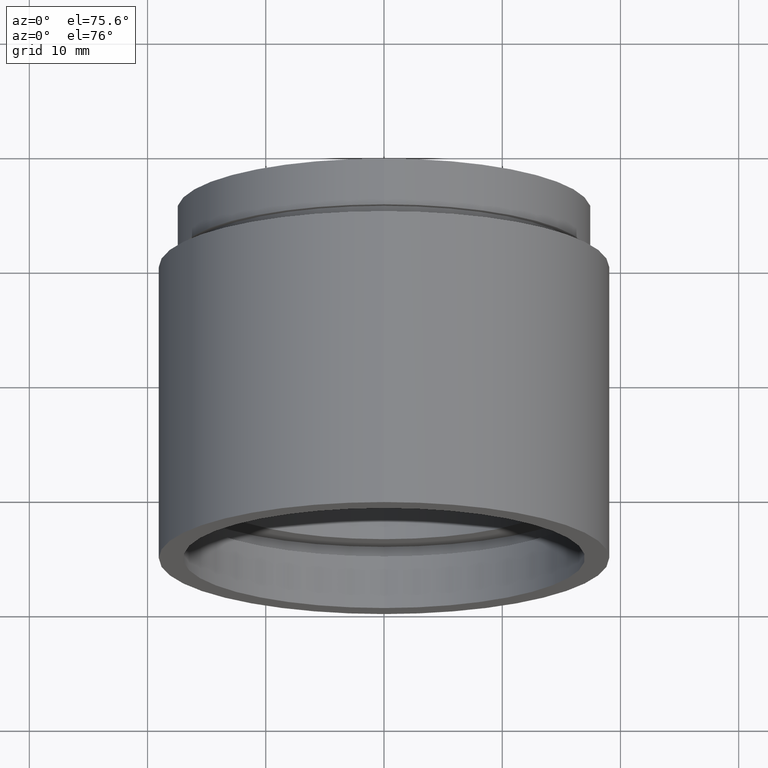
[diagram: clean part render]
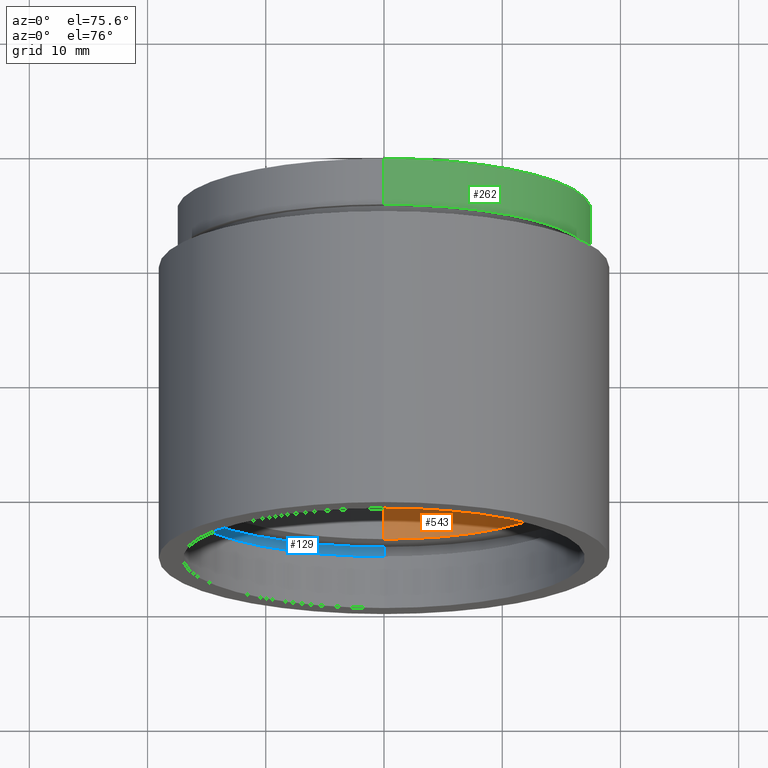
[diagram: same view with three faces highlighted in distinct colors, each labeled with its STEP entity id]
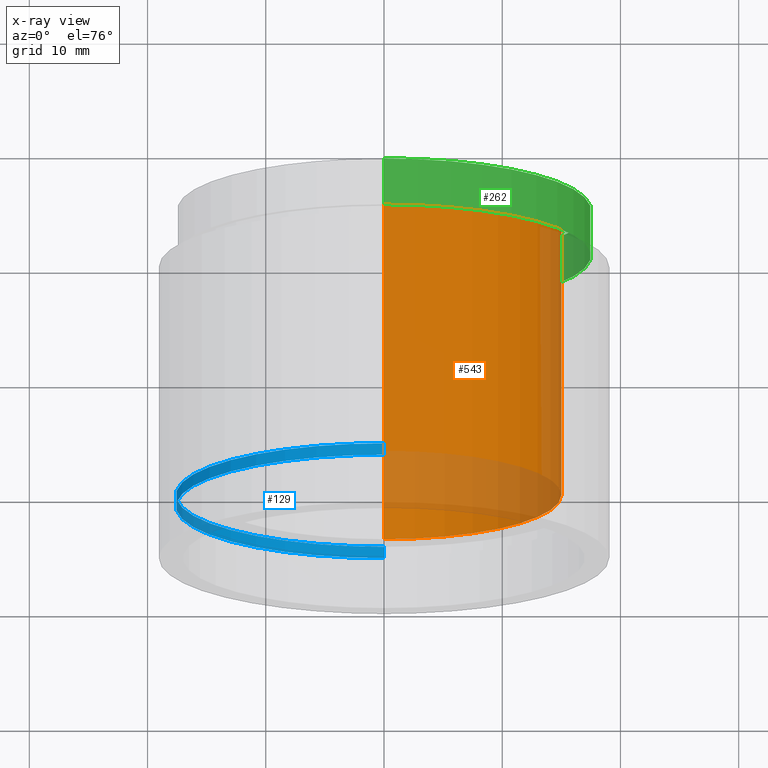
[diagram: x-ray of the same camera — body ghosted, the three highlighted faces saturated]
A machine part, auxiliary view with three faces highlighted in distinct colors.
The next image is the same camera in x-ray (body ghosted, the three faces saturated) — at least one of them is partly hidden behind the body in this view.
Their STEP definitions:

[orange] entity #543 — the highlighted cylindrical surface (partial cylindrical patch) has radius 15 mm, axis along (-0, 1, -0).
#3 = VECTOR ( 'NONE', #280, 1000.000000000000000 ) ;
#50 = DIRECTION ( 'NONE',  ( -0.0000000000000000000, 1.000000000000000000, -0.0000000000000000000 ) ) ;
#78 = CARTESIAN_POINT ( 'NONE',  ( 0.0000000000000000000, 161.3761669434274500, 0.0000000000000000000 ) ) ;
#79 = DIRECTION ( 'NONE',  ( -0.0000000000000000000, 1.000000000000000000, -0.0000000000000000000 ) ) ;
#82 = AXIS2_PLACEMENT_3D ( 'NONE', #196, #50, #353 ) ;
#87 = LINE ( 'NONE', #572, #3 ) ;
#121 = ORIENTED_EDGE ( 'NONE', *, *, #281, .F. ) ;
#175 = VECTOR ( 'NONE', #530, 1000.000000000000000 ) ;
#187 = EDGE_LOOP ( 'NONE', ( #121, #370, #299, #240 ) ) ;
#191 = VERTEX_POINT ( 'NONE', #334 ) ;
#193 = CYLINDRICAL_SURFACE ( 'NONE', #213, 15.00000000000001600 ) ;
#196 = CARTESIAN_POINT ( 'NONE',  ( 0.0000000000000000000, 30.39999999999998400, 0.0000000000000000000 ) ) ;
#197 = CARTESIAN_POINT ( 'NONE',  ( 0.0000000000000000000, 161.3761669434274500, 15.00000000000001600 ) ) ;
#201 = EDGE_CURVE ( 'NONE', #191, #620, #551, .T. ) ;
#213 = AXIS2_PLACEMENT_3D ( 'NONE', #78, #222, #275 ) ;
#216 = VERTEX_POINT ( 'NONE', #380 ) ;
#222 = DIRECTION ( 'NONE',  ( -0.0000000000000000000, 1.000000000000000000, -0.0000000000000000000 ) ) ;
#229 = FACE_OUTER_BOUND ( 'NONE', #187, .T. ) ;
#240 = ORIENTED_EDGE ( 'NONE', *, *, #308, .T. ) ;
#267 = DIRECTION ( 'NONE',  ( 0.0000000000000000000, 0.0000000000000000000, 1.000000000000000000 ) ) ;
#275 = DIRECTION ( 'NONE',  ( 0.0000000000000000000, 0.0000000000000000000, 1.000000000000000000 ) ) ;
#280 = DIRECTION ( 'NONE',  ( -0.0000000000000000000, 1.000000000000000000, -0.0000000000000000000 ) ) ;
#281 = EDGE_CURVE ( 'NONE', #620, #575, #87, .T. ) ;
#299 = ORIENTED_EDGE ( 'NONE', *, *, #343, .T. ) ;
#308 = EDGE_CURVE ( 'NONE', #216, #575, #573, .T. ) ;
#334 = CARTESIAN_POINT ( 'NONE',  ( 0.0000000000000000000, 5.499999999999976900, 15.00000000000001600 ) ) ;
#343 = EDGE_CURVE ( 'NONE', #191, #216, #437, .T. ) ;
#353 = DIRECTION ( 'NONE',  ( 0.0000000000000000000, 0.0000000000000000000, 1.000000000000000000 ) ) ;
#370 = ORIENTED_EDGE ( 'NONE', *, *, #201, .F. ) ;
#380 = CARTESIAN_POINT ( 'NONE',  ( 0.0000000000000000000, 30.39999999999998400, 15.00000000000001800 ) ) ;
#419 = CARTESIAN_POINT ( 'NONE',  ( 1.836970198721032000E-015, 5.499999999999976900, -15.00000000000001600 ) ) ;
#437 = LINE ( 'NONE', #197, #175 ) ;
#530 = DIRECTION ( 'NONE',  ( -0.0000000000000000000, 1.000000000000000000, -0.0000000000000000000 ) ) ;
#543 = ADVANCED_FACE ( 'NONE', ( #229 ), #193, .F. ) ;
#551 = CIRCLE ( 'NONE', #564, 15.00000000000001600 ) ;
#564 = AXIS2_PLACEMENT_3D ( 'NONE', #611, #79, #267 ) ;
#572 = CARTESIAN_POINT ( 'NONE',  ( 1.836970198721032000E-015, 161.3761669434274500, -15.00000000000001600 ) ) ;
#573 = CIRCLE ( 'NONE', #82, 15.00000000000001800 ) ;
#575 = VERTEX_POINT ( 'NONE', #609 ) ;
#609 = CARTESIAN_POINT ( 'NONE',  ( 1.836970198721032300E-015, 30.39999999999998400, -15.00000000000002000 ) ) ;
#611 = CARTESIAN_POINT ( 'NONE',  ( 0.0000000000000000000, 5.499999999999976900, 0.0000000000000000000 ) ) ;
#620 = VERTEX_POINT ( 'NONE', #419 ) ;

[blue] entity #129 — the highlighted cylindrical surface (partial cylindrical patch) has radius 17.6 mm, axis along (-0, 1, -0).
#10 = EDGE_LOOP ( 'NONE', ( #527, #57, #158, #417 ) ) ;
#14 = EDGE_CURVE ( 'NONE', #580, #85, #590, .T. ) ;
#15 = CARTESIAN_POINT ( 'NONE',  ( 2.155378366499344400E-015, 5.499999999999976900, -17.60000000000002300 ) ) ;
#57 = ORIENTED_EDGE ( 'NONE', *, *, #14, .T. ) ;
#64 = VECTOR ( 'NONE', #146, 1000.000000000000000 ) ;
#73 = VECTOR ( 'NONE', #489, 1000.000000000000000 ) ;
#76 = EDGE_CURVE ( 'NONE', #85, #589, #493, .T. ) ;
#85 = VERTEX_POINT ( 'NONE', #15 ) ;
#106 = CARTESIAN_POINT ( 'NONE',  ( 0.0000000000000000000, 4.499999999999976000, 0.0000000000000000000 ) ) ;
#129 = ADVANCED_FACE ( 'NONE', ( #502 ), #444, .F. ) ;
#146 = DIRECTION ( 'NONE',  ( -0.0000000000000000000, 1.000000000000000000, -0.0000000000000000000 ) ) ;
#158 = ORIENTED_EDGE ( 'NONE', *, *, #76, .T. ) ;
#179 = CARTESIAN_POINT ( 'NONE',  ( 0.0000000000000000000, 5.499999999999976900, 17.60000000000002300 ) ) ;
#203 = DIRECTION ( 'NONE',  ( 0.0000000000000000000, 0.0000000000000000000, 1.000000000000000000 ) ) ;
#215 = DIRECTION ( 'NONE',  ( 0.0000000000000000000, 0.0000000000000000000, 1.000000000000000000 ) ) ;
#277 = CARTESIAN_POINT ( 'NONE',  ( 0.0000000000000000000, 161.3761669434274500, 0.0000000000000000000 ) ) ;
#297 = CARTESIAN_POINT ( 'NONE',  ( 0.0000000000000000000, 161.3761669434274500, 17.60000000000002300 ) ) ;
#300 = AXIS2_PLACEMENT_3D ( 'NONE', #106, #490, #203 ) ;
#306 = CARTESIAN_POINT ( 'NONE',  ( 2.155378366499344400E-015, 161.3761669434274500, -17.60000000000002300 ) ) ;
#315 = DIRECTION ( 'NONE',  ( -0.0000000000000000000, 1.000000000000000000, -0.0000000000000000000 ) ) ;
#336 = CARTESIAN_POINT ( 'NONE',  ( 2.155378366499344400E-015, 4.499999999999976000, -17.60000000000002300 ) ) ;
#350 = AXIS2_PLACEMENT_3D ( 'NONE', #277, #562, #215 ) ;
#367 = CARTESIAN_POINT ( 'NONE',  ( 0.0000000000000000000, 5.499999999999976900, 0.0000000000000000000 ) ) ;
#371 = EDGE_CURVE ( 'NONE', #500, #589, #456, .T. ) ;
#378 = AXIS2_PLACEMENT_3D ( 'NONE', #367, #315, #597 ) ;
#417 = ORIENTED_EDGE ( 'NONE', *, *, #371, .F. ) ;
#433 = EDGE_CURVE ( 'NONE', #580, #500, #522, .T. ) ;
#444 = CYLINDRICAL_SURFACE ( 'NONE', #350, 17.60000000000002300 ) ;
#453 = CARTESIAN_POINT ( 'NONE',  ( 0.0000000000000000000, 4.499999999999976000, 17.60000000000002300 ) ) ;
#456 = LINE ( 'NONE', #297, #64 ) ;
#489 = DIRECTION ( 'NONE',  ( -0.0000000000000000000, 1.000000000000000000, -0.0000000000000000000 ) ) ;
#490 = DIRECTION ( 'NONE',  ( -0.0000000000000000000, 1.000000000000000000, -0.0000000000000000000 ) ) ;
#493 = CIRCLE ( 'NONE', #378, 17.60000000000002300 ) ;
#500 = VERTEX_POINT ( 'NONE', #453 ) ;
#502 = FACE_OUTER_BOUND ( 'NONE', #10, .T. ) ;
#522 = CIRCLE ( 'NONE', #300, 17.60000000000002300 ) ;
#527 = ORIENTED_EDGE ( 'NONE', *, *, #433, .F. ) ;
#562 = DIRECTION ( 'NONE',  ( -0.0000000000000000000, 1.000000000000000000, -0.0000000000000000000 ) ) ;
#580 = VERTEX_POINT ( 'NONE', #336 ) ;
#589 = VERTEX_POINT ( 'NONE', #179 ) ;
#590 = LINE ( 'NONE', #306, #73 ) ;
#597 = DIRECTION ( 'NONE',  ( 0.0000000000000000000, 0.0000000000000000000, 1.000000000000000000 ) ) ;

[green] entity #262 — the highlighted cylindrical surface (partial cylindrical patch) has radius 17.5 mm, axis along (-0, 1, -0).
#11 = ORIENTED_EDGE ( 'NONE', *, *, #476, .T. ) ;
#45 = DIRECTION ( 'NONE',  ( 0.0000000000000000000, 0.0000000000000000000, 1.000000000000000000 ) ) ;
#53 = AXIS2_PLACEMENT_3D ( 'NONE', #608, #327, #332 ) ;
#62 = VERTEX_POINT ( 'NONE', #361 ) ;
#68 = CARTESIAN_POINT ( 'NONE',  ( 0.0000000000000000000, 26.39999999999997700, 17.50000000000002500 ) ) ;
#92 = ORIENTED_EDGE ( 'NONE', *, *, #128, .F. ) ;
#124 = AXIS2_PLACEMENT_3D ( 'NONE', #584, #516, #171 ) ;
#128 = EDGE_CURVE ( 'NONE', #497, #596, #616, .T. ) ;
#144 = EDGE_CURVE ( 'NONE', #596, #184, #523, .T. ) ;
#168 = VECTOR ( 'NONE', #261, 1000.000000000000000 ) ;
#171 = DIRECTION ( 'NONE',  ( 0.0000000000000000000, 0.0000000000000000000, 1.000000000000000000 ) ) ;
#184 = VERTEX_POINT ( 'NONE', #377 ) ;
#186 = CIRCLE ( 'NONE', #124, 17.50000000000002500 ) ;
#189 = CARTESIAN_POINT ( 'NONE',  ( 0.0000000000000000000, 161.3761669434274500, 0.0000000000000000000 ) ) ;
#208 = AXIS2_PLACEMENT_3D ( 'NONE', #189, #342, #45 ) ;
#217 = ORIENTED_EDGE ( 'NONE', *, *, #515, .T. ) ;
#261 = DIRECTION ( 'NONE',  ( -0.0000000000000000000, 1.000000000000000000, -0.0000000000000000000 ) ) ;
#262 = ADVANCED_FACE ( 'NONE', ( #592 ), #329, .T. ) ;
#327 = DIRECTION ( 'NONE',  ( -0.0000000000000000000, 1.000000000000000000, -0.0000000000000000000 ) ) ;
#329 = CYLINDRICAL_SURFACE ( 'NONE', #208, 17.50000000000002500 ) ;
#332 = DIRECTION ( 'NONE',  ( 0.0000000000000000000, 0.0000000000000000000, 1.000000000000000000 ) ) ;
#342 = DIRECTION ( 'NONE',  ( -0.0000000000000000000, 1.000000000000000000, -0.0000000000000000000 ) ) ;
#361 = CARTESIAN_POINT ( 'NONE',  ( 2.143131898507871400E-015, 26.39999999999997700, -17.50000000000002500 ) ) ;
#377 = CARTESIAN_POINT ( 'NONE',  ( 2.143131898507871400E-015, 30.39999999999998400, -17.50000000000002500 ) ) ;
#383 = CARTESIAN_POINT ( 'NONE',  ( 0.0000000000000000000, 161.3761669434274500, 17.50000000000002500 ) ) ;
#390 = DIRECTION ( 'NONE',  ( -0.0000000000000000000, 1.000000000000000000, -0.0000000000000000000 ) ) ;
#464 = LINE ( 'NONE', #595, #168 ) ;
#467 = CARTESIAN_POINT ( 'NONE',  ( 0.0000000000000000000, 30.39999999999998400, 17.50000000000002500 ) ) ;
#476 = EDGE_CURVE ( 'NONE', #62, #184, #464, .T. ) ;
#497 = VERTEX_POINT ( 'NONE', #68 ) ;
#515 = EDGE_CURVE ( 'NONE', #497, #62, #186, .T. ) ;
#516 = DIRECTION ( 'NONE',  ( -0.0000000000000000000, 1.000000000000000000, -0.0000000000000000000 ) ) ;
#523 = CIRCLE ( 'NONE', #53, 17.50000000000002500 ) ;
#537 = EDGE_LOOP ( 'NONE', ( #217, #11, #547, #92 ) ) ;
#547 = ORIENTED_EDGE ( 'NONE', *, *, #144, .F. ) ;
#584 = CARTESIAN_POINT ( 'NONE',  ( 0.0000000000000000000, 26.39999999999997700, 0.0000000000000000000 ) ) ;
#592 = FACE_OUTER_BOUND ( 'NONE', #537, .T. ) ;
#595 = CARTESIAN_POINT ( 'NONE',  ( 2.143131898507871400E-015, 161.3761669434274500, -17.50000000000002500 ) ) ;
#596 = VERTEX_POINT ( 'NONE', #467 ) ;
#606 = VECTOR ( 'NONE', #390, 1000.000000000000000 ) ;
#608 = CARTESIAN_POINT ( 'NONE',  ( 0.0000000000000000000, 30.39999999999998400, 0.0000000000000000000 ) ) ;
#616 = LINE ( 'NONE', #383, #606 ) ;